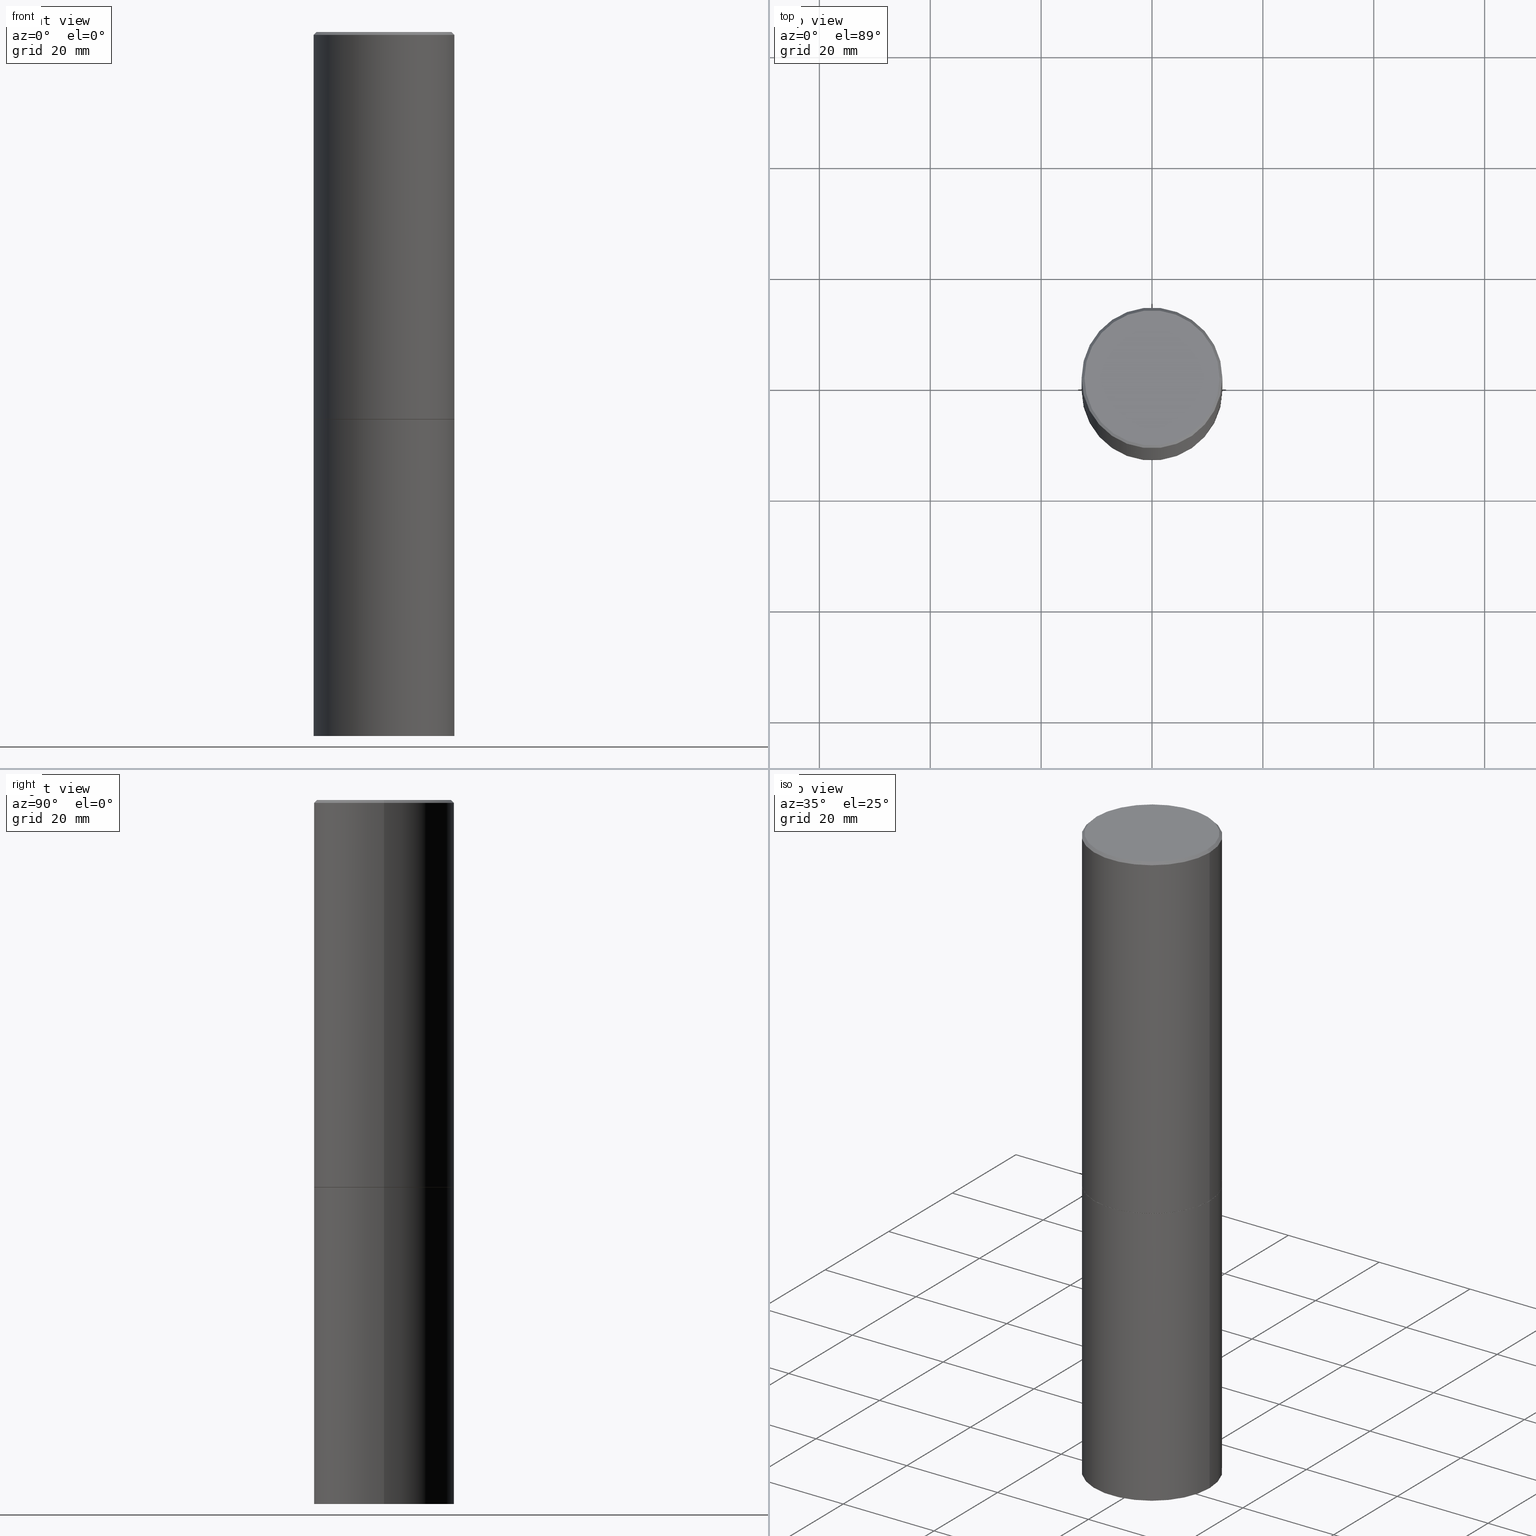
[diagram: canonical four-view strip — front | top / right | iso, engineering-drawing reading convention]
A machine part, canonical four-view strip (front | top / right | iso — engineering-drawing reading convention). The complete STEP part file that produces these views, byte-faithful:
ISO-10303-21;
HEADER;
FILE_DESCRIPTION (( 'STEP AP203' ),
    '1' );
FILE_NAME ('31824.STEP',
    '2024-02-27T13:45:45',
    ( '' ),
    ( '' ),
    'SwSTEP 2.0',
    'SolidWorks 2023',
    '' );
FILE_SCHEMA (( 'CONFIG_CONTROL_DESIGN' ));
ENDSEC;

DATA;
#1 = CC_DESIGN_PERSON_AND_ORGANIZATION_ASSIGNMENT ( #130, #358, ( #249 ) ) ;
#2 = AXIS2_PLACEMENT_3D ( 'NONE', #11, #285, #3 ) ;
#3 = DIRECTION ( 'NONE',  ( 1.000000000000000000, -6.982962677686265133E-15, 0.000000000000000000 ) ) ;
#4 = ORIENTED_EDGE ( 'NONE', *, *, #196, .T. ) ;
#5 =( NAMED_UNIT ( * ) SI_UNIT ( $, .STERADIAN. ) SOLID_ANGLE_UNIT ( ) );
#6 = ADVANCED_BREP_SHAPE_REPRESENTATION ( '31824', ( #89, #333, #78 ), #289 ) ;
#7 = CIRCLE ( 'NONE', #327, 0.4799999999999996492 ) ;
#8 = CARTESIAN_POINT ( 'NONE',  ( -5.219257071676098903E-46, 7.451715851902235727E-32, 2.134256245050205639E-17 ) ) ;
#9 = FACE_OUTER_BOUND ( 'NONE', #161, .T. ) ;
#10 = ADVANCED_FACE ( 'NONE', ( #243 ), #205, .F. ) ;
#11 = CARTESIAN_POINT ( 'NONE',  ( 6.725039217009124520E-29, -9.601573681818649859E-15, -2.750000000000000000 ) ) ;
#12 = ORIENTED_EDGE ( 'NONE', *, *, #196, .F. ) ;
#13 = DIRECTION ( 'NONE',  ( 1.000000000000000000, -6.982962677686266711E-15, 4.876176775795935793E-29 ) ) ;
#14 = AXIS2_PLACEMENT_3D ( 'NONE', #346, #198, #59 ) ;
#15 = ORIENTED_EDGE ( 'NONE', *, *, #304, .F. ) ;
#16 = VECTOR ( 'NONE', #206, 39.37007874015748143 ) ;
#17 = CC_DESIGN_APPROVAL ( #175, ( #308 ) ) ;
#18 = VERTEX_POINT ( 'NONE', #324 ) ;
#19 = DIRECTION ( 'NONE',  ( -2.445468806185136877E-29, 3.491481338843145188E-15, 1.000000000000000000 ) ) ;
#20 = CALENDAR_DATE ( 2024, 27, 2 ) ;
#21 = ORIENTED_EDGE ( 'NONE', *, *, #33, .T. ) ;
#22 = DIRECTION ( 'NONE',  ( -2.445468806185136597E-29, 3.491481338843145583E-15, 1.000000000000000000 ) ) ;
#23 = AXIS2_PLACEMENT_3D ( 'NONE', #158, #22, #223 ) ;
#24 = LINE ( 'NONE', #138, #142 ) ;
#25 = VERTEX_POINT ( 'NONE', #66 ) ;
#26 = CARTESIAN_POINT ( 'NONE',  ( 0.4989999999999999991, -1.308607205798409720E-14, -2.750000000000000000 ) ) ;
#27 = CARTESIAN_POINT ( 'NONE',  ( 4.890937612370297681E-31, -6.982962677686324889E-17, -0.02000000000000009756 ) ) ;
#28 = DIRECTION ( 'NONE',  ( 1.000000000000000000, -6.982962677686265133E-15, 0.000000000000000000 ) ) ;
#29 = DIRECTION ( 'NONE',  ( 1.000000000000000000, -6.982962677686267499E-15, 4.876431871984417079E-29 ) ) ;
#30 = AXIS2_PLACEMENT_3D ( 'NONE', #27, #288, #88 ) ;
#31 = LOCAL_TIME ( 8, 45, 45.00000000000000000, #219 ) ;
#32 = FACE_OUTER_BOUND ( 'NONE', #239, .T. ) ;
#33 = EDGE_CURVE ( 'NONE', #211, #43, #38, .T. ) ;
#34 = PRODUCT_DEFINITION_SHAPE ( 'NONE', 'NONE',  #252 ) ;
#35 = CARTESIAN_POINT ( 'NONE',  ( 6.725039217009124520E-29, -9.601573681818649859E-15, -2.750000000000000000 ) ) ;
#36 = CARTESIAN_POINT ( 'NONE',  ( 3.491481338843255234E-15, 0.4999999999999825140, -5.000000000000002665 ) ) ;
#37 = CIRCLE ( 'NONE', #107, 0.5000000000000000000 ) ;
#38 = LINE ( 'NONE', #267, #166 ) ;
#39 = LOCAL_TIME ( 8, 45, 45.00000000000000000, #296 ) ;
#40 = CALENDAR_DATE ( 2024, 27, 2 ) ;
#41 = ORIENTED_EDGE ( 'NONE', *, *, #350, .T. ) ;
#42 = CARTESIAN_POINT ( 'NONE',  ( 1.222734403092568523E-28, -1.745740669421572989E-14, -5.000000000000000000 ) ) ;
#43 = VERTEX_POINT ( 'NONE', #301 ) ;
#44 = ORIENTED_EDGE ( 'NONE', *, *, #293, .T. ) ;
#45 = PRODUCT ( '31824', '31824', '', ( #90 ) ) ;
#46 = AXIS2_PLACEMENT_3D ( 'NONE', #101, #220, #79 ) ;
#47 = COORDINATED_UNIVERSAL_TIME_OFFSET ( 5, 0, .BEHIND. ) ;
#48 = EDGE_LOOP ( 'NONE', ( #99, #278 ) ) ;
#49 = CARTESIAN_POINT ( 'NONE',  ( 0.5000000000000000000, -3.491481338843133355E-15, 2.438088387897967896E-29 ) ) ;
#50 = EDGE_CURVE ( 'NONE', #222, #25, #200, .T. ) ;
#51 = CARTESIAN_POINT ( 'NONE',  ( -0.5000000000000000000, -1.281242234827833554E-15, -2.749000000000000110 ) ) ;
#52 = CARTESIAN_POINT ( 'NONE',  ( 0.000000000000000000, 0.000000000000000000, 0.000000000000000000 ) ) ;
#53 = ORIENTED_EDGE ( 'NONE', *, *, #229, .F. ) ;
#54 = AXIS2_PLACEMENT_3D ( 'NONE', #36, #332, #323 ) ;
#55 = ADVANCED_FACE ( 'NONE', ( #124 ), #277, .T. ) ;
#56 = ORIENTED_EDGE ( 'NONE', *, *, #95, .T. ) ;
#57 = AXIS2_PLACEMENT_3D ( 'NONE', #237, #300, #356 ) ;
#58 = APPROVAL_DATE_TIME ( #241, #175 ) ;
#59 = DIRECTION ( 'NONE',  ( 1.000000000000000000, -6.982962677686266711E-15, 4.876176775795935793E-29 ) ) ;
#60 = CYLINDRICAL_SURFACE ( 'NONE', #143, 0.4999999999999998335 ) ;
#61 = EDGE_CURVE ( 'NONE', #18, #218, #185, .T. ) ;
#62 = DIRECTION ( 'NONE',  ( 1.000000000000000000, -6.982962677686265133E-15, 0.000000000000000000 ) ) ;
#63 = CARTESIAN_POINT ( 'NONE',  ( 0.5000000000000000000, -1.308956353932294179E-14, -2.749000000000000110 ) ) ;
#64 = APPLICATION_PROTOCOL_DEFINITION ( 'international standard', 'config_control_design', 1994, #141 ) ;
#65 = CARTESIAN_POINT ( 'NONE',  ( 0.000000000000000000, 0.000000000000000000, 0.000000000000000000 ) ) ;
#66 = CARTESIAN_POINT ( 'NONE',  ( 0.5000000000000000000, -2.094888803305886324E-14, -5.000000000000000000 ) ) ;
#67 = VECTOR ( 'NONE', #348, 39.37007874015748143 ) ;
#68 = CARTESIAN_POINT ( 'NONE',  ( 6.725039217009124520E-29, -9.601573681818649859E-15, -2.750000000000000000 ) ) ;
#69 = ORIENTED_EDGE ( 'NONE', *, *, #109, .T. ) ;
#70 = APPROVAL ( #325, 'UNSPECIFIED' ) ;
#71 = APPROVAL_STATUS ( 'not_yet_approved' ) ;
#72 = ORIENTED_EDGE ( 'NONE', *, *, #276, .T. ) ;
#73 = CARTESIAN_POINT ( 'NONE',  ( 0.4989999999999999991, -1.308607205798409720E-14, -2.750000000000000000 ) ) ;
#74 = DIRECTION ( 'NONE',  ( 2.438088387897960049E-29, -3.491481338843145188E-15, -1.000000000000000000 ) ) ;
#75 = EDGE_LOOP ( 'NONE', ( #272, #97, #44, #337 ) ) ;
#76 = ADVANCED_FACE ( 'NONE', ( #86 ), #111, .T. ) ;
#77 = AXIS2_PLACEMENT_3D ( 'NONE', #116, #230, #195 ) ;
#78 = AXIS2_PLACEMENT_3D ( 'NONE', #351, #144, #113 ) ;
#79 = DIRECTION ( 'NONE',  ( 1.000000000000000000, -6.982962677686266711E-15, 0.000000000000000000 ) ) ;
#80 = DIRECTION ( 'NONE',  ( -2.445468806185136597E-29, 3.491481338843145583E-15, 1.000000000000000000 ) ) ;
#81 = CIRCLE ( 'NONE', #342, 0.4989999999999999991 ) ;
#82 = LINE ( 'NONE', #49, #271 ) ;
#83 = ADVANCED_FACE ( 'NONE', ( #32 ), #145, .T. ) ;
#84 = AXIS2_PLACEMENT_3D ( 'NONE', #189, #80, #245 ) ;
#85 = APPROVAL_PERSON_ORGANIZATION ( #232, #70, #176 ) ;
#86 = FACE_OUTER_BOUND ( 'NONE', #247, .T. ) ;
#87 = CALENDAR_DATE ( 2024, 27, 2 ) ;
#88 = DIRECTION ( 'NONE',  ( -1.000000000000000000, 6.982962677686266711E-15, 0.000000000000000000 ) ) ;
#89 = MANIFOLD_SOLID_BREP ( 'Body-Move/Copy2[1]', #347 ) ;
#90 = MECHANICAL_CONTEXT ( 'NONE', #172, 'mechanical' ) ;
#91 = CARTESIAN_POINT ( 'NONE',  ( 6.725039217009124520E-29, -9.601573681818649859E-15, -2.750000000000000000 ) ) ;
#92 =( NAMED_UNIT ( * ) PLANE_ANGLE_UNIT ( ) SI_UNIT ( $, .RADIAN. ) );
#93 = AXIS2_PLACEMENT_3D ( 'NONE', #98, #74, #183 ) ;
#94 = CARTESIAN_POINT ( 'NONE',  ( 0.000000000000000000, 0.000000000000000000, 0.000000000000000000 ) ) ;
#95 = EDGE_CURVE ( 'NONE', #236, #275, #216, .T. ) ;
#96 = LINE ( 'NONE', #268, #16 ) ;
#97 = ORIENTED_EDGE ( 'NONE', *, *, #61, .F. ) ;
#98 = CARTESIAN_POINT ( 'NONE',  ( 3.351822085289405181E-15, 0.4799999999999996492, -1.665239761419457638E-15 ) ) ;
#99 = ORIENTED_EDGE ( 'NONE', *, *, #134, .F. ) ;
#100 = ORIENTED_EDGE ( 'NONE', *, *, #50, .F. ) ;
#101 = CARTESIAN_POINT ( 'NONE',  ( 6.722593748202941159E-29, -9.598082200479808430E-15, -2.749000000000000110 ) ) ;
#102 = CONICAL_SURFACE ( 'NONE', #30, 0.4999999999999996669, 0.7853981633974450594 ) ;
#103 = PERSON_AND_ORGANIZATION_ROLE ( 'design_supplier' ) ;
#104 = ORIENTED_EDGE ( 'NONE', *, *, #140, .T. ) ;
#105 = ADVANCED_FACE ( 'NONE', ( #294 ), #126, .T. ) ;
#106 = LINE ( 'NONE', #26, #177 ) ;
#107 = AXIS2_PLACEMENT_3D ( 'NONE', #259, #167, #168 ) ;
#108 = APPROVAL_PERSON_ORGANIZATION ( #328, #366, #156 ) ;
#109 = EDGE_CURVE ( 'NONE', #218, #18, #7, .T. ) ;
#110 = CONICAL_SURFACE ( 'NONE', #306, 0.4989999999999999991, 0.7853981633975507526 ) ;
#111 = CYLINDRICAL_SURFACE ( 'NONE', #14, 0.5000000000000000000 ) ;
#112 = EDGE_CURVE ( 'NONE', #275, #211, #221, .T. ) ;
#113 = DIRECTION ( 'NONE',  ( 1.000000000000000000, 0.000000000000000000, 0.000000000000000000 ) ) ;
#114 = LINE ( 'NONE', #117, #67 ) ;
#115 = DIRECTION ( 'NONE',  ( -2.445468806185136597E-29, 3.491481338843145583E-15, 1.000000000000000000 ) ) ;
#116 = CARTESIAN_POINT ( 'NONE',  ( 4.890937612370297681E-31, -6.982962677686324889E-17, -0.02000000000000009756 ) ) ;
#117 = CARTESIAN_POINT ( 'NONE',  ( -0.4999999999999998335, 3.552713678800499746E-15, -2.459467545127452330E-29 ) ) ;
#118 = PERSON_AND_ORGANIZATION ( #307, #312 ) ;
#119 = CC_DESIGN_APPROVAL ( #366, ( #249 ) ) ;
#120 = DIRECTION ( 'NONE',  ( 1.000000000000000000, -6.982962677686267499E-15, 4.876431871984417079E-29 ) ) ;
#121 = DIRECTION ( 'NONE',  ( 1.000000000000000000, -6.982962677686267499E-15, 4.876176775795936353E-29 ) ) ;
#122 = FACE_OUTER_BOUND ( 'NONE', #224, .T. ) ;
#123 = ORIENTED_EDGE ( 'NONE', *, *, #109, .F. ) ;
#124 = FACE_OUTER_BOUND ( 'NONE', #75, .T. ) ;
#125 = EDGE_LOOP ( 'NONE', ( #284, #270, #257, #357 ) ) ;
#126 = PLANE ( 'NONE',  #54 ) ;
#127 = CLOSED_SHELL ( 'NONE', ( #147, #365, #193, #55, #283, #336, #10, #128 ) ) ;
#128 = ADVANCED_FACE ( 'NONE', ( #122 ), #213, .F. ) ;
#129 = DATE_AND_TIME ( #40, #39 ) ;
#130 = PERSON_AND_ORGANIZATION ( #307, #312 ) ;
#131 = EDGE_LOOP ( 'NONE', ( #215, #100 ) ) ;
#132 = PERSON_AND_ORGANIZATION ( #307, #312 ) ;
#133 = ORIENTED_EDGE ( 'NONE', *, *, #234, .F. ) ;
#134 = EDGE_CURVE ( 'NONE', #180, #236, #355, .T. ) ;
#135 = CIRCLE ( 'NONE', #23, 0.4999999999999996669 ) ;
#136 = LINE ( 'NONE', #250, #343 ) ;
#137 = DIRECTION ( 'NONE',  ( 0.7071067811866199593, -2.468850131083015945E-15, 0.7071067811864750752 ) ) ;
#138 = CARTESIAN_POINT ( 'NONE',  ( -0.5000000000000000000, 3.552713678800500929E-15, -2.459467545127452891E-29 ) ) ;
#139 = CC_DESIGN_PERSON_AND_ORGANIZATION_ASSIGNMENT ( #260, #317, ( #45 ) ) ;
#140 = EDGE_CURVE ( 'NONE', #222, #313, #24, .T. ) ;
#141 = APPLICATION_CONTEXT ( 'configuration controlled 3d designs of mechanical parts and assemblies' ) ;
#142 = VECTOR ( 'NONE', #261, 39.37007874015748143 ) ;
#143 = AXIS2_PLACEMENT_3D ( 'NONE', #94, #264, #121 ) ;
#144 = DIRECTION ( 'NONE',  ( 0.000000000000000000, 0.000000000000000000, 1.000000000000000000 ) ) ;
#145 = CYLINDRICAL_SURFACE ( 'NONE', #231, 0.5000000000000000000 ) ;
#146 = APPLICATION_PROTOCOL_DEFINITION ( 'international standard', 'config_control_design', 1994, #172 ) ;
#147 = ADVANCED_FACE ( 'NONE', ( #208 ), #148, .T. ) ;
#148 = CONICAL_SURFACE ( 'NONE', #2, 0.4989999999999999991, 0.7853981633975507526 ) ;
#149 = ORIENTED_EDGE ( 'NONE', *, *, #140, .F. ) ;
#150 = DIRECTION ( 'NONE',  ( 1.000000000000000000, -6.982962677686266711E-15, 0.000000000000000000 ) ) ;
#151 = SECURITY_CLASSIFICATION_LEVEL ( 'unclassified' ) ;
#152 = VERTEX_POINT ( 'NONE', #321 ) ;
#153 = AXIS2_PLACEMENT_3D ( 'NONE', #319, #171, #292 ) ;
#154 = EDGE_LOOP ( 'NONE', ( #123, #41, #72, #334 ) ) ;
#155 = PERSON_AND_ORGANIZATION ( #307, #312 ) ;
#156 = APPROVAL_ROLE ( '' ) ;
#157 = EDGE_CURVE ( 'NONE', #25, #222, #265, .T. ) ;
#158 = CARTESIAN_POINT ( 'NONE',  ( 4.890937612370297681E-31, -6.982962677686324889E-17, -0.02000000000000009756 ) ) ;
#159 = DIRECTION ( 'NONE',  ( 1.000000000000000000, -6.982962677686267499E-15, 4.876176775795936353E-29 ) ) ;
#160 = FACE_OUTER_BOUND ( 'NONE', #326, .T. ) ;
#161 = EDGE_LOOP ( 'NONE', ( #209, #184, #302, #187 ) ) ;
#162 = DIRECTION ( 'NONE',  ( -2.445468806185136597E-29, 3.491481338843145583E-15, 1.000000000000000000 ) ) ;
#163 = ORIENTED_EDGE ( 'NONE', *, *, #50, .T. ) ;
#164 = ADVANCED_FACE ( 'NONE', ( #160 ), #194, .F. ) ;
#165 = CARTESIAN_POINT ( 'NONE',  ( -0.5000000000000000000, -9.976776509216688154E-15, -2.750000000000000000 ) ) ;
#166 = VECTOR ( 'NONE', #178, 39.37007874015748143 ) ;
#167 = DIRECTION ( 'NONE',  ( -2.445468806185136597E-29, 3.491481338843145583E-15, 1.000000000000000000 ) ) ;
#168 = DIRECTION ( 'NONE',  ( 1.000000000000000000, -6.982962677686266711E-15, 0.000000000000000000 ) ) ;
#169 = CC_DESIGN_SECURITY_CLASSIFICATION ( #308, ( #249 ) ) ;
#170 = DATE_TIME_ROLE ( 'classification_date' ) ;
#171 = DIRECTION ( 'NONE',  ( -2.445468806185136597E-29, 3.491481338843145583E-15, 1.000000000000000000 ) ) ;
#172 = APPLICATION_CONTEXT ( 'configuration controlled 3d designs of mechanical parts and assemblies' ) ;
#173 = DIRECTION ( 'NONE',  ( -2.438088387897960049E-29, 3.491481338843145188E-15, 1.000000000000000000 ) ) ;
#174 = CARTESIAN_POINT ( 'NONE',  ( -0.4989999999999999991, -6.055965430375749938E-15, -2.750000000000000000 ) ) ;
#175 = APPROVAL ( #71, 'UNSPECIFIED' ) ;
#176 = APPROVAL_ROLE ( '' ) ;
#177 = VECTOR ( 'NONE', #137, 39.37007874015748143 ) ;
#178 = DIRECTION ( 'NONE',  ( -2.445468806185136877E-29, 3.491481338843145188E-15, 1.000000000000000000 ) ) ;
#179 = FACE_OUTER_BOUND ( 'NONE', #125, .T. ) ;
#180 = VERTEX_POINT ( 'NONE', #73 ) ;
#181 = EDGE_CURVE ( 'NONE', #212, #313, #227, .T. ) ;
#182 = PRODUCT_RELATED_PRODUCT_CATEGORY ( 'detail', '', ( #45 ) ) ;
#183 = DIRECTION ( 'NONE',  ( -1.000000000000000000, 6.982962677686265922E-15, -4.876176775795935793E-29 ) ) ;
#184 = ORIENTED_EDGE ( 'NONE', *, *, #316, .T. ) ;
#185 = CIRCLE ( 'NONE', #281, 0.4799999999999996492 ) ;
#186 = DIRECTION ( 'NONE',  ( -2.445468806185136597E-29, 3.491481338843145583E-15, 1.000000000000000000 ) ) ;
#187 = ORIENTED_EDGE ( 'NONE', *, *, #33, .F. ) ;
#188 = CYLINDRICAL_SURFACE ( 'NONE', #311, 0.4999999999999998335 ) ;
#189 = CARTESIAN_POINT ( 'NONE',  ( 4.890937612370297681E-31, -6.982962677686324889E-17, -0.02000000000000009756 ) ) ;
#190 = AXIS2_PLACEMENT_3D ( 'NONE', #42, #354, #150 ) ;
#191 = LOCAL_TIME ( 8, 45, 45.00000000000000000, #361 ) ;
#192 = DESIGN_CONTEXT ( 'detailed design', #141, 'design' ) ;
#193 = ADVANCED_FACE ( 'NONE', ( #225 ), #102, .T. ) ;
#194 = PLANE ( 'NONE',  #210 ) ;
#195 = DIRECTION ( 'NONE',  ( -1.000000000000000000, 6.982962677686266711E-15, 0.000000000000000000 ) ) ;
#196 = EDGE_CURVE ( 'NONE', #313, #212, #37, .T. ) ;
#197 = CARTESIAN_POINT ( 'NONE',  ( 0.4799999999999996492, -3.396558832296479732E-15, 2.134256245052565135E-17 ) ) ;
#198 = DIRECTION ( 'NONE',  ( -2.445468806185136597E-29, 3.491481338843145583E-15, 1.000000000000000000 ) ) ;
#199 = CC_DESIGN_DATE_AND_TIME_ASSIGNMENT ( #309, #217, ( #252 ) ) ;
#200 = CIRCLE ( 'NONE', #190, 0.5000000000000000000 ) ;
#201 = EDGE_CURVE ( 'NONE', #236, #180, #81, .T. ) ;
#202 = DIRECTION ( 'NONE',  ( -2.445468806185136597E-29, 3.491481338843145583E-15, 1.000000000000000000 ) ) ;
#203 = LENGTH_MEASURE_WITH_UNIT ( LENGTH_MEASURE( 0.02539999999999999897 ), #290 );
#204 = DIRECTION ( 'NONE',  ( -2.445468806185136597E-29, 3.491481338843145583E-15, 1.000000000000000000 ) ) ;
#205 = PLANE ( 'NONE',  #335 ) ;
#206 = DIRECTION ( 'NONE',  ( 0.7071067811865452413, -7.319954787623248157E-15, -0.7071067811865497932 ) ) ;
#207 = DIRECTION ( 'NONE',  ( -2.445468806185136597E-29, 3.491481338843145583E-15, 1.000000000000000000 ) ) ;
#208 = FACE_OUTER_BOUND ( 'NONE', #299, .T. ) ;
#209 = ORIENTED_EDGE ( 'NONE', *, *, #251, .T. ) ;
#210 = AXIS2_PLACEMENT_3D ( 'NONE', #344, #291, #269 ) ;
#211 = VERTEX_POINT ( 'NONE', #63 ) ;
#212 = VERTEX_POINT ( 'NONE', #254 ) ;
#213 = PLANE ( 'NONE',  #93 ) ;
#214 = PERSON_AND_ORGANIZATION ( #307, #312 ) ;
#215 = ORIENTED_EDGE ( 'NONE', *, *, #157, .F. ) ;
#216 = LINE ( 'NONE', #174, #314 ) ;
#217 = DATE_TIME_ROLE ( 'creation_date' ) ;
#218 = VERTEX_POINT ( 'NONE', #197 ) ;
#219 = COORDINATED_UNIVERSAL_TIME_OFFSET ( 5, 0, .BEHIND. ) ;
#220 = DIRECTION ( 'NONE',  ( -2.445468806185136597E-29, 3.491481338843145583E-15, 1.000000000000000000 ) ) ;
#221 = CIRCLE ( 'NONE', #57, 0.5000000000000000000 ) ;
#222 = VERTEX_POINT ( 'NONE', #226 ) ;
#223 = DIRECTION ( 'NONE',  ( 1.000000000000000000, -6.982962677686266711E-15, 0.000000000000000000 ) ) ;
#224 = EDGE_LOOP ( 'NONE', ( #310, #69 ) ) ;
#225 = FACE_OUTER_BOUND ( 'NONE', #154, .T. ) ;
#226 = CARTESIAN_POINT ( 'NONE',  ( -0.5000000000000000000, -9.976776509216688154E-15, -5.000000000000000000 ) ) ;
#227 = CIRCLE ( 'NONE', #258, 0.5000000000000000000 ) ;
#228 = APPROVAL_ROLE ( '' ) ;
#229 = EDGE_CURVE ( 'NONE', #25, #212, #82, .T. ) ;
#230 = DIRECTION ( 'NONE',  ( 2.445468806185136597E-29, -3.491481338843145583E-15, -1.000000000000000000 ) ) ;
#231 = AXIS2_PLACEMENT_3D ( 'NONE', #65, #233, #13 ) ;
#232 = PERSON_AND_ORGANIZATION ( #307, #312 ) ;
#233 = DIRECTION ( 'NONE',  ( -2.445468806185136597E-29, 3.491481338843145583E-15, 1.000000000000000000 ) ) ;
#234 = EDGE_CURVE ( 'NONE', #152, #43, #248, .T. ) ;
#235 = CALENDAR_DATE ( 2024, 27, 2 ) ;
#236 = VERTEX_POINT ( 'NONE', #360 ) ;
#237 = CARTESIAN_POINT ( 'NONE',  ( 6.722593748202941159E-29, -9.598082200479808430E-15, -2.749000000000000110 ) ) ;
#238 = PERSON_AND_ORGANIZATION_ROLE ( 'creator' ) ;
#239 = EDGE_LOOP ( 'NONE', ( #149, #163, #305, #12 ) ) ;
#240 = DIRECTION ( 'NONE',  ( -0.7071067811866199593, 7.493145998870616062E-15, 0.7071067811864750752 ) ) ;
#241 = DATE_AND_TIME ( #87, #31 ) ;
#242 = APPROVAL_DATE_TIME ( #129, #70 ) ;
#243 = FACE_OUTER_BOUND ( 'NONE', #48, .T. ) ;
#244 = ORIENTED_EDGE ( 'NONE', *, *, #134, .T. ) ;
#245 = DIRECTION ( 'NONE',  ( 1.000000000000000000, -6.982962677686266711E-15, 0.000000000000000000 ) ) ;
#246 = APPROVAL_DATE_TIME ( #362, #366 ) ;
#247 = EDGE_LOOP ( 'NONE', ( #349, #104, #330, #53 ) ) ;
#248 = CIRCLE ( 'NONE', #84, 0.4999999999999996669 ) ;
#249 = PRODUCT_DEFINITION_FORMATION_WITH_SPECIFIED_SOURCE ( 'ANY', '', #45, .NOT_KNOWN. ) ;
#250 = CARTESIAN_POINT ( 'NONE',  ( -0.4999999999999996669, 3.421651712066267691E-15, -0.02000000000000009756 ) ) ;
#251 = EDGE_CURVE ( 'NONE', #211, #275, #297, .T. ) ;
#252 = PRODUCT_DEFINITION ( 'UNKNOWN', '', #249, #192 ) ;
#253 = ORIENTED_EDGE ( 'NONE', *, *, #316, .F. ) ;
#254 = CARTESIAN_POINT ( 'NONE',  ( 0.5000000000000000000, -1.309305502066178321E-14, -2.750000000000000000 ) ) ;
#255 = ORIENTED_EDGE ( 'NONE', *, *, #181, .T. ) ;
#256 = CARTESIAN_POINT ( 'NONE',  ( -5.219257071676098903E-46, 7.451715851902235727E-32, 2.134256245050205639E-17 ) ) ;
#257 = ORIENTED_EDGE ( 'NONE', *, *, #304, .T. ) ;
#258 = AXIS2_PLACEMENT_3D ( 'NONE', #322, #204, #352 ) ;
#259 = CARTESIAN_POINT ( 'NONE',  ( 6.725039217009124520E-29, -9.601573681818649859E-15, -2.750000000000000000 ) ) ;
#260 = PERSON_AND_ORGANIZATION ( #307, #312 ) ;
#261 = DIRECTION ( 'NONE',  ( -2.445468806185136877E-29, 3.491481338843145188E-15, 1.000000000000000000 ) ) ;
#262 = CC_DESIGN_PERSON_AND_ORGANIZATION_ASSIGNMENT ( #155, #273, ( #308 ) ) ;
#263 = CALENDAR_DATE ( 2024, 27, 2 ) ;
#264 = DIRECTION ( 'NONE',  ( -2.445468806185136597E-29, 3.491481338843145583E-15, 1.000000000000000000 ) ) ;
#265 = CIRCLE ( 'NONE', #153, 0.5000000000000000000 ) ;
#266 = CC_DESIGN_APPROVAL ( #70, ( #252 ) ) ;
#267 = CARTESIAN_POINT ( 'NONE',  ( 0.4999999999999998335, -3.491481338843132566E-15, 2.438088387897967336E-29 ) ) ;
#268 = CARTESIAN_POINT ( 'NONE',  ( 0.4999999999999996669, -3.500078625662626713E-15, -0.02000000000000009756 ) ) ;
#269 = DIRECTION ( 'NONE',  ( -1.000000000000000000, 6.982962677686265922E-15, -4.876176775795935793E-29 ) ) ;
#270 = ORIENTED_EDGE ( 'NONE', *, *, #201, .T. ) ;
#271 = VECTOR ( 'NONE', #19, 39.37007874015748143 ) ;
#272 = ORIENTED_EDGE ( 'NONE', *, *, #350, .F. ) ;
#273 = PERSON_AND_ORGANIZATION_ROLE ( 'classification_officer' ) ;
#274 = COORDINATED_UNIVERSAL_TIME_OFFSET ( 5, 0, .BEHIND. ) ;
#275 = VERTEX_POINT ( 'NONE', #51 ) ;
#276 = EDGE_CURVE ( 'NONE', #43, #152, #135, .T. ) ;
#277 = CONICAL_SURFACE ( 'NONE', #77, 0.4999999999999996669, 0.7853981633974450594 ) ;
#278 = ORIENTED_EDGE ( 'NONE', *, *, #201, .F. ) ;
#279 = DIRECTION ( 'NONE',  ( -0.7071067811865452413, 2.468850131082233000E-15, -0.7071067811865497932 ) ) ;
#280 = CC_DESIGN_DATE_AND_TIME_ASSIGNMENT ( #318, #170, ( #308 ) ) ;
#281 = AXIS2_PLACEMENT_3D ( 'NONE', #256, #202, #29 ) ;
#282 = LOCAL_TIME ( 8, 45, 45.00000000000000000, #47 ) ;
#283 = ADVANCED_FACE ( 'NONE', ( #338 ), #188, .T. ) ;
#284 = ORIENTED_EDGE ( 'NONE', *, *, #95, .F. ) ;
#285 = DIRECTION ( 'NONE',  ( -2.445468806185136597E-29, 3.491481338843145583E-15, 1.000000000000000000 ) ) ;
#286 = AXIS2_PLACEMENT_3D ( 'NONE', #303, #186, #364 ) ;
#287 =( CONVERSION_BASED_UNIT ( 'INCH', #203 ) LENGTH_UNIT ( ) NAMED_UNIT ( #339 ) );
#288 = DIRECTION ( 'NONE',  ( 2.445468806185136597E-29, -3.491481338843145583E-15, -1.000000000000000000 ) ) ;
#289 =( GEOMETRIC_REPRESENTATION_CONTEXT ( 3 ) GLOBAL_UNCERTAINTY_ASSIGNED_CONTEXT ( ( #341 ) ) GLOBAL_UNIT_ASSIGNED_CONTEXT ( ( #287, #92, #5 ) ) REPRESENTATION_CONTEXT ( 'NONE', 'WORKASPACE' ) );
#290 =( LENGTH_UNIT ( ) NAMED_UNIT ( * ) SI_UNIT ( $, .METRE. ) );
#291 = DIRECTION ( 'NONE',  ( 2.438088387897960049E-29, -3.491481338843145188E-15, -1.000000000000000000 ) ) ;
#292 = DIRECTION ( 'NONE',  ( 1.000000000000000000, -6.982962677686266711E-15, 0.000000000000000000 ) ) ;
#293 = EDGE_CURVE ( 'NONE', #18, #152, #136, .T. ) ;
#294 = FACE_OUTER_BOUND ( 'NONE', #131, .T. ) ;
#295 = DIRECTION ( 'NONE',  ( 1.000000000000000000, -6.982962677686265922E-15, 4.876176775795935793E-29 ) ) ;
#296 = COORDINATED_UNIVERSAL_TIME_OFFSET ( 5, 0, .BEHIND. ) ;
#297 = CIRCLE ( 'NONE', #46, 0.5000000000000000000 ) ;
#298 = APPROVAL_PERSON_ORGANIZATION ( #118, #175, #228 ) ;
#299 = EDGE_LOOP ( 'NONE', ( #244, #56, #340, #15 ) ) ;
#300 = DIRECTION ( 'NONE',  ( -2.445468806185136597E-29, 3.491481338843145583E-15, 1.000000000000000000 ) ) ;
#301 = CARTESIAN_POINT ( 'NONE',  ( 0.4999999999999996669, -3.500078625662626713E-15, -0.02000000000000009756 ) ) ;
#302 = ORIENTED_EDGE ( 'NONE', *, *, #276, .F. ) ;
#303 = CARTESIAN_POINT ( 'NONE',  ( 6.725039217009124520E-29, -9.601573681818649859E-15, -2.750000000000000000 ) ) ;
#304 = EDGE_CURVE ( 'NONE', #180, #211, #106, .T. ) ;
#305 = ORIENTED_EDGE ( 'NONE', *, *, #229, .T. ) ;
#306 = AXIS2_PLACEMENT_3D ( 'NONE', #35, #345, #62 ) ;
#307 = PERSON ( 'UNSPECIFIED', 'UNSPECIFIED', 'UNSPECIFIED', ('UNSPECIFIED'), ('UNSPECIFIED'), ('UNSPECIFIED') ) ;
#308 = SECURITY_CLASSIFICATION ( '', '', #151 ) ;
#309 = DATE_AND_TIME ( #235, #320 ) ;
#310 = ORIENTED_EDGE ( 'NONE', *, *, #61, .T. ) ;
#311 = AXIS2_PLACEMENT_3D ( 'NONE', #52, #162, #159 ) ;
#312 = ORGANIZATION ( 'UNSPECIFIED', 'UNSPECIFIED', '' ) ;
#313 = VERTEX_POINT ( 'NONE', #165 ) ;
#314 = VECTOR ( 'NONE', #240, 39.37007874015748143 ) ;
#315 = CC_DESIGN_PERSON_AND_ORGANIZATION_ASSIGNMENT ( #214, #238, ( #252 ) ) ;
#316 = EDGE_CURVE ( 'NONE', #275, #152, #114, .T. ) ;
#317 = PERSON_AND_ORGANIZATION_ROLE ( 'design_owner' ) ;
#318 = DATE_AND_TIME ( #263, #191 ) ;
#319 = CARTESIAN_POINT ( 'NONE',  ( 1.222734403092568523E-28, -1.745740669421572989E-14, -5.000000000000000000 ) ) ;
#320 = LOCAL_TIME ( 8, 45, 45.00000000000000000, #274 ) ;
#321 = CARTESIAN_POINT ( 'NONE',  ( -0.4999999999999996669, 3.421651712066267691E-15, -0.02000000000000009756 ) ) ;
#322 = CARTESIAN_POINT ( 'NONE',  ( 6.725039217009124520E-29, -9.601573681818649859E-15, -2.750000000000000000 ) ) ;
#323 = DIRECTION ( 'NONE',  ( -1.000000000000000000, 6.982962677686265922E-15, -4.876176775795935793E-29 ) ) ;
#324 = CARTESIAN_POINT ( 'NONE',  ( -0.4799999999999996492, 3.386736898677836436E-15, 2.134256245047849534E-17 ) ) ;
#325 = APPROVAL_STATUS ( 'not_yet_approved' ) ;
#326 = EDGE_LOOP ( 'NONE', ( #255, #4 ) ) ;
#327 = AXIS2_PLACEMENT_3D ( 'NONE', #8, #207, #120 ) ;
#328 = PERSON_AND_ORGANIZATION ( #307, #312 ) ;
#329 = APPROVAL_STATUS ( 'not_yet_approved' ) ;
#330 = ORIENTED_EDGE ( 'NONE', *, *, #181, .F. ) ;
#331 = CC_DESIGN_PERSON_AND_ORGANIZATION_ASSIGNMENT ( #132, #103, ( #249 ) ) ;
#332 = DIRECTION ( 'NONE',  ( 2.438088387897960049E-29, -3.491481338843145188E-15, -1.000000000000000000 ) ) ;
#333 = MANIFOLD_SOLID_BREP ( 'Body-Move/Copy2[2]', #127 ) ;
#334 = ORIENTED_EDGE ( 'NONE', *, *, #293, .F. ) ;
#335 = AXIS2_PLACEMENT_3D ( 'NONE', #68, #173, #295 ) ;
#336 = ADVANCED_FACE ( 'NONE', ( #179 ), #110, .T. ) ;
#337 = ORIENTED_EDGE ( 'NONE', *, *, #234, .T. ) ;
#338 = FACE_OUTER_BOUND ( 'NONE', #363, .T. ) ;
#339 = DIMENSIONAL_EXPONENTS ( 1.000000000000000000, 0.000000000000000000, 0.000000000000000000, 0.000000000000000000, 0.000000000000000000, 0.000000000000000000, 0.000000000000000000 ) ;
#340 = ORIENTED_EDGE ( 'NONE', *, *, #251, .F. ) ;
#341 = UNCERTAINTY_MEASURE_WITH_UNIT (LENGTH_MEASURE( 1.000000000000000082E-05 ), #287, 'distance_accuracy_value', 'NONE');
#342 = AXIS2_PLACEMENT_3D ( 'NONE', #91, #115, #28 ) ;
#343 = VECTOR ( 'NONE', #279, 39.37007874015748143 ) ;
#344 = CARTESIAN_POINT ( 'NONE',  ( 3.491481338843200408E-15, 0.4999999999999903411, -2.750000000000001332 ) ) ;
#345 = DIRECTION ( 'NONE',  ( -2.445468806185136597E-29, 3.491481338843145583E-15, 1.000000000000000000 ) ) ;
#346 = CARTESIAN_POINT ( 'NONE',  ( 0.000000000000000000, 0.000000000000000000, 0.000000000000000000 ) ) ;
#347 = CLOSED_SHELL ( 'NONE', ( #76, #105, #164, #83 ) ) ;
#348 = DIRECTION ( 'NONE',  ( -2.445468806185136877E-29, 3.491481338843145188E-15, 1.000000000000000000 ) ) ;
#349 = ORIENTED_EDGE ( 'NONE', *, *, #157, .T. ) ;
#350 = EDGE_CURVE ( 'NONE', #218, #43, #96, .T. ) ;
#351 = CARTESIAN_POINT ( 'NONE',  ( 0.000000000000000000, 0.000000000000000000, 0.000000000000000000 ) ) ;
#352 = DIRECTION ( 'NONE',  ( 1.000000000000000000, -6.982962677686266711E-15, 0.000000000000000000 ) ) ;
#353 = SHAPE_DEFINITION_REPRESENTATION ( #34, #6 ) ;
#354 = DIRECTION ( 'NONE',  ( -2.445468806185136597E-29, 3.491481338843145583E-15, 1.000000000000000000 ) ) ;
#355 = CIRCLE ( 'NONE', #286, 0.4989999999999999991 ) ;
#356 = DIRECTION ( 'NONE',  ( 1.000000000000000000, -6.982962677686266711E-15, 0.000000000000000000 ) ) ;
#357 = ORIENTED_EDGE ( 'NONE', *, *, #112, .F. ) ;
#358 = PERSON_AND_ORGANIZATION_ROLE ( 'creator' ) ;
#359 = ORIENTED_EDGE ( 'NONE', *, *, #112, .T. ) ;
#360 = CARTESIAN_POINT ( 'NONE',  ( -0.4989999999999999991, -6.050666976027527536E-15, -2.750000000000000000 ) ) ;
#361 = COORDINATED_UNIVERSAL_TIME_OFFSET ( 5, 0, .BEHIND. ) ;
#362 = DATE_AND_TIME ( #20, #282 ) ;
#363 = EDGE_LOOP ( 'NONE', ( #253, #359, #21, #133 ) ) ;
#364 = DIRECTION ( 'NONE',  ( 1.000000000000000000, -6.982962677686265133E-15, 0.000000000000000000 ) ) ;
#365 = ADVANCED_FACE ( 'NONE', ( #9 ), #60, .T. ) ;
#366 = APPROVAL ( #329, 'UNSPECIFIED' ) ;
ENDSEC;
END-ISO-10303-21;
